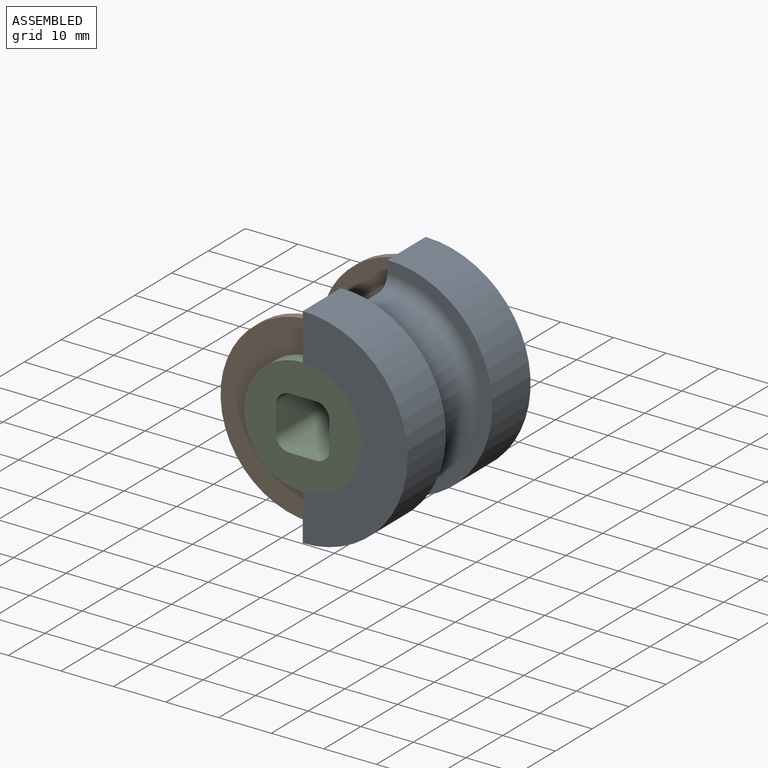
[diagram: assembled view]
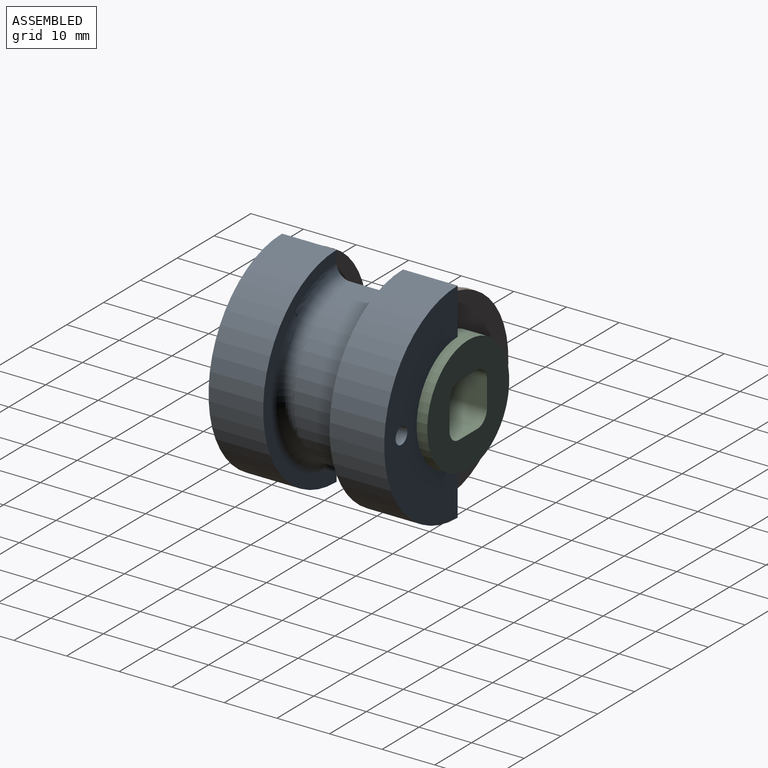
[diagram: assembled view, second angle]
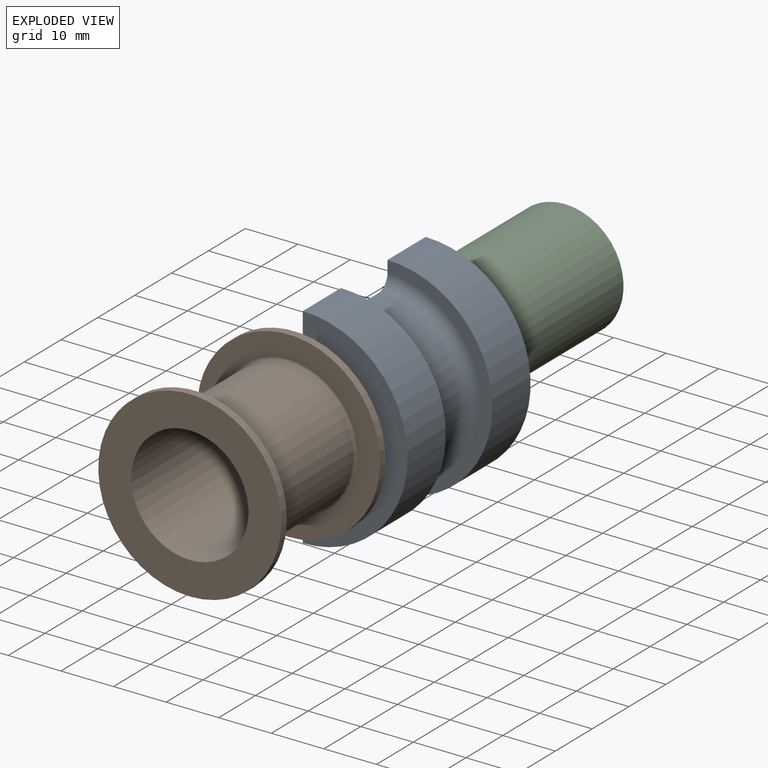
[diagram: exploded view]
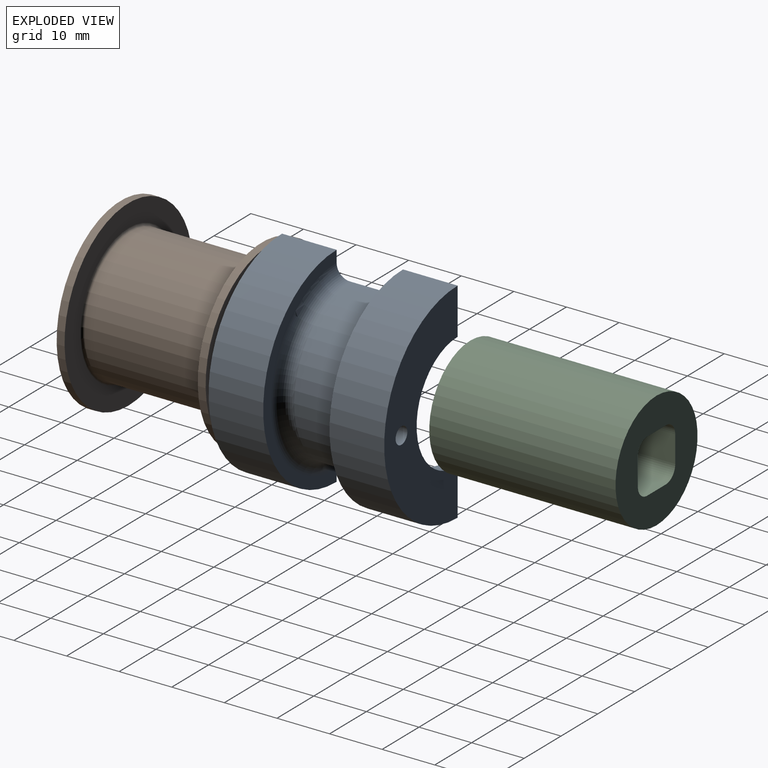
[diagram: exploded view, second angle]
ASSEMBLY  parts=3 mates=2
PART A: 31 faces, bbox 21.1x33.4x42.3 mm
  f0: plane 33.39x8.8mm, normal (-1,0,0), area 163.9mm2, adj f2,f3,f4,f5,f6,f7,f8,f9
  f1: plane 33.39x8.8mm, normal (-1,0,0), area 163.9mm2, adj f2,f3,f4,f5,f6,f7,f8,f9
  f2: cylinder r=17.4mm len=34.8mm, axis (0,-1,0), area 82mm2, adj f0,f1,f3,f4
  f3: plane 34.8x17.4mm, normal (0,1,0), area 280.7mm2, adj f0,f1,f2,f21
  f4: plane 34.8x17.4mm, normal (0,-1,0), area 204.5mm2, adj f0,f1,f2,f5
  f5: torus R=13.14mm, axis (0,-1,0), area 31.6mm2, adj f0,f1,f4,f6
  f6: cylinder r=12.64mm len=25.27mm, axis (0,-1,0), area 965.2mm2, adj f0,f1,f5,f10
  f7: cylinder r=17.4mm len=34.8mm, axis (0,1,0), area 82mm2, adj f0,f1,f8,f9
  f8: plane 34.8x17.4mm, normal (0,-1,0), area 272.8mm2, adj f0,f1,f7,f20,f30
  f9: plane 34.8x17.4mm, normal (0,1,0), area 204.5mm2, adj f0,f1,f7,f10
  f10: torus R=13.14mm, axis (0,1,0), area 31.6mm2, adj f0,f1,f6,f9
  f11: cylinder r=15.18mm len=30.35mm, axis (0,-1,0), area 359.1mm2, adj f0,f1,f12,f16
  f12: torus R=17.72mm, axis (0,-1,0), area 201.8mm2, adj f0,f1,f11,f13
  f13: plane 39.88x19.94mm, normal (0,1,0), area 131.5mm2, adj f0,f1,f12,f14
  f14: cylinder r=19.94mm len=39.88mm, axis (0,-1,0), area 650.8mm2, adj f0,f1,f13,f15
  f15: plane 39.88x19.94mm, normal (0,-1,0), area 429.7mm2, adj f0,f1,f14,f21
  f16: torus R=17.72mm, axis (0,1,0), area 201.8mm2, adj f0,f1,f11,f17
  f17: plane 39.88x19.94mm, normal (0,-1,0), area 131.5mm2, adj f0,f1,f16,f18
  f18: cylinder r=19.94mm len=39.88mm, axis (0,1,0), area 650.8mm2, adj f0,f1,f17,f19
  f19: plane 39.88x19.94mm, normal (0,1,0), area 421.8mm2, adj f0,f1,f18,f20,f30
  f20: cylinder r=11.14mm len=22.27mm, axis (0,1,0), area 88.9mm2, adj f0,f1,f8,f19
  f21: cylinder r=11.14mm len=22.27mm, axis (0,1,0), area 88.9mm2, adj f0,f1,f3,f15
  f22: cylinder r=1.59mm len=5.08mm, axis (-1,0,0), area 50.7mm2, adj f1,f23
  f23: plane 3.18x3.18mm, normal (-1,0,0), area 7.9mm2, adj f22
  f24: cylinder r=1.59mm len=5.08mm, axis (-1,0,0), area 50.7mm2, adj f1,f25
  f25: plane 3.18x3.18mm, normal (-1,0,0), area 7.9mm2, adj f24
  f26: cylinder r=1.59mm len=5.08mm, axis (-1,0,0), area 50.7mm2, adj f0,f27
  f27: plane 3.18x3.18mm, normal (-1,0,0), area 7.9mm2, adj f26
  f28: cylinder r=1.59mm len=5.08mm, axis (-1,0,0), area 50.7mm2, adj f0,f29
  f29: plane 3.18x3.18mm, normal (-1,0,0), area 7.9mm2, adj f28
  f30: cylinder r=1.59mm len=3.18mm, axis (0,-1,0), area 25.3mm2, adj f8,f19
PART B: 10 faces, bbox 34.8x28.3x34.8 mm
  f0: cylinder r=17.4mm len=34.8mm, axis (0,-1,0), area 164mm2, adj f1,f9
  f1: plane 34.8x34.8mm, normal (0,1,0), area 408.9mm2, adj f0,f2
  f2: torus R=13.14mm, axis (0,-1,0), area 63.3mm2, adj f1,f3
  f3: cylinder r=12.64mm len=25.27mm, axis (0,-1,0), area 1931mm2, adj f2,f4
  f4: torus R=13.14mm, axis (0,-1,0), area 63.3mm2, adj f3,f5
  f5: plane 34.8x34.8mm, normal (0,-1,0), area 408.9mm2, adj f4,f6
  f6: cylinder r=17.4mm len=34.8mm, axis (0,-1,0), area 164mm2, adj f5,f7
  f7: plane 34.8x34.8mm, normal (0,1,0), area 561.4mm2, adj f6,f8
  f8: cylinder r=11.14mm len=28.32mm, axis (0,-1,0), area 1981.7mm2, adj f7,f9
  f9: plane 34.8x34.8mm, normal (0,-1,0), area 561.4mm2, adj f0,f8
PART C: 11 faces, bbox 22.3x35.4x22.3 mm
  f0: plane 22.27x22.27mm, normal (0,-1,0), area 291.9mm2, adj f2,f3,f4,f5,f6,f7,f8,f9
  f1: plane 22.27x22.27mm, normal (0,1,0), area 291.9mm2, adj f2,f3,f4,f5,f6,f7,f8,f9
  f2: cylinder r=11.14mm len=35.41mm, axis (0,-1,0), area 2477.7mm2, adj f0,f1
  f3: plane 35.41x5.08mm, normal (1,0,0), area 179.9mm2, adj f0,f1,f4,f6
  f4: cylinder r=2.54mm len=35.41mm, axis (0,1,0), area 141.3mm2, adj f0,f1,f3,f5
  f5: plane 35.41x5.08mm, normal (0,0,1), area 179.9mm2, adj f0,f1,f4,f7
  f6: cylinder r=2.54mm len=35.41mm, axis (0,1,0), area 141.3mm2, adj f0,f1,f3,f8
  f7: cylinder r=2.54mm len=35.41mm, axis (0,1,0), area 141.3mm2, adj f0,f1,f5,f9
  f8: plane 35.41x5.08mm, normal (0,0,-1), area 179.9mm2, adj f0,f1,f6,f10
  f9: plane 35.41x5.08mm, normal (-1,0,0), area 179.9mm2, adj f0,f1,f7,f10
  f10: cylinder r=2.54mm len=35.41mm, axis (0,1,0), area 141.3mm2, adj f0,f1,f8,f9
PLACE A t=(35.04,15.17,-7.1)mm
PLACE B t=(35.04,15.17,-7.1)mm
PLACE C t=(35.04,16.18,-7.1)mm
MATE revolute B.f0 <-> A.f2  axis (0,-1,0) through (35.04,1.01,-7.1)mm
MATE revolute C.f2 <-> A.f2  axis (0,-1,0) through (35.04,-1.53,-7.1)mm
